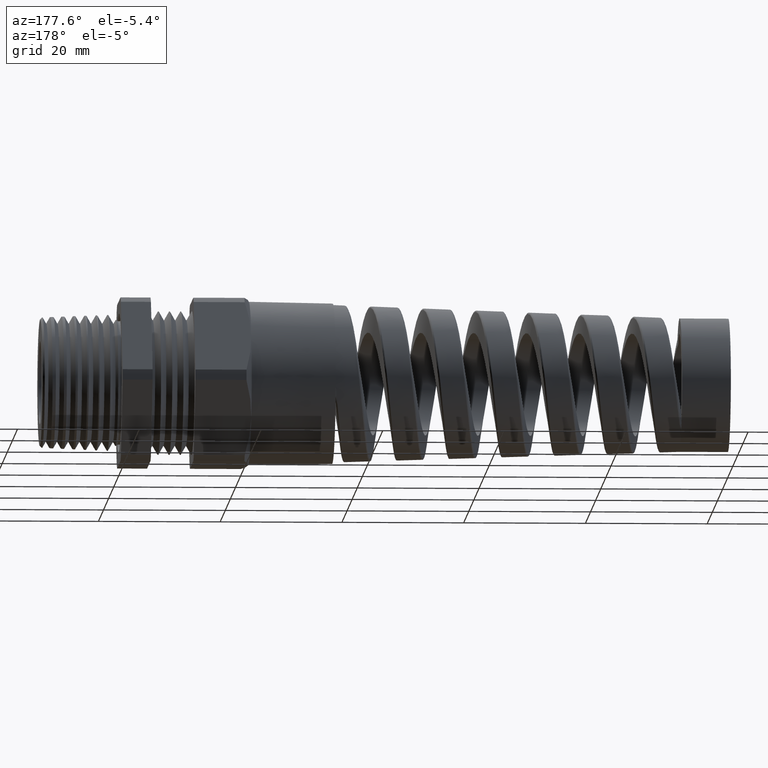
[diagram: clean part render]
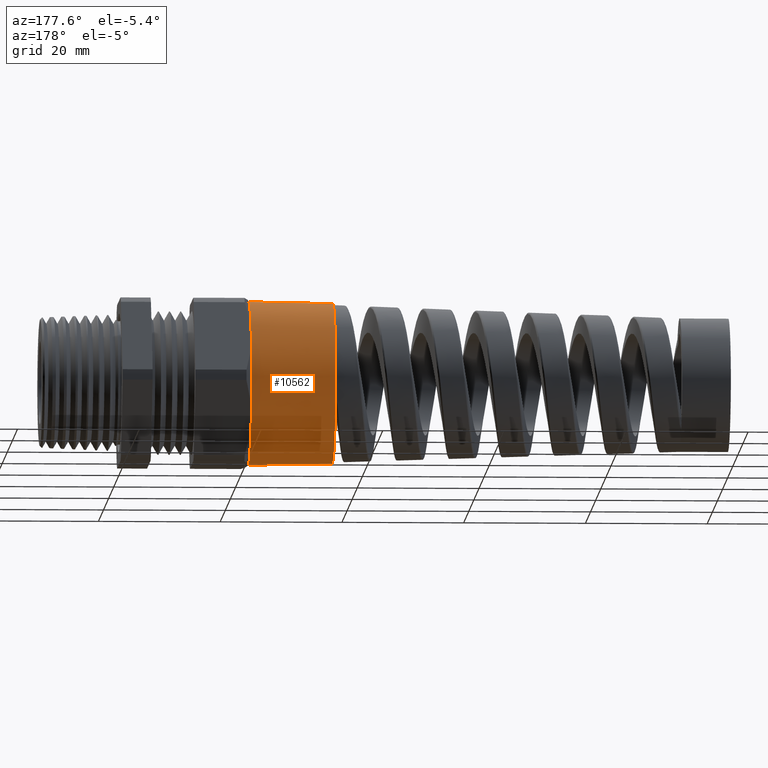
[diagram: same view with one face highlighted and labeled with its STEP entity id]
A machine part, auxiliary view. The second image highlights one B-rep face of the part: STEP entity #10562.
In plain terms, the highlighted conical surface has half-angle 1 deg.
Its self-contained STEP definition (entity closure, byte-faithful):
#3697 = LINE ( 'NONE', #3723, #3722 ) ;
#3699 = CARTESIAN_POINT ( 'NONE',  ( -0.8375000000000000200, 0.0000000000000000000, 0.5299999999999999200 ) ) ;
#3721 = DIRECTION ( 'NONE',  ( 0.9998476951563912700, 0.0000000000000000000, 0.01745240643728355000 ) ) ;
#3722 = VECTOR ( 'NONE', #3721, 39.37007874015748100 ) ;
#3723 = CARTESIAN_POINT ( 'NONE',  ( -0.8375000000000001300, 0.0000000000000000000, 0.5299999999999999200 ) ) ;
#3758 = CARTESIAN_POINT ( 'NONE',  ( -0.8375000000000000200, 0.0000000000000000000, -0.5299999999999999200 ) ) ;
#3759 = DIRECTION ( 'NONE',  ( 0.9998476951563912700, -2.137303368083796300E-018, -0.01745240643728355000 ) ) ;
#3760 = VECTOR ( 'NONE', #3759, 39.37007874015748100 ) ;
#3761 = CARTESIAN_POINT ( 'NONE',  ( -0.8375000000000001300, -6.490628035480971200E-017, -0.5299999999999999200 ) ) ;
#3762 = LINE ( 'NONE', #3761, #3760 ) ;
#3763 = CARTESIAN_POINT ( 'NONE',  ( -1.381220000000000100, 0.0000000000000000000, 0.5205093320972294900 ) ) ;
#3769 = CARTESIAN_POINT ( 'NONE',  ( -1.381220000000000100, -6.432514455136479600E-017, -0.5205093320972294900 ) ) ;
#5578 = CARTESIAN_POINT ( 'NONE',  ( -0.8375000000000000200, 0.4589934640057525300, -0.2649999999999998500 ) ) ;
#5585 = CARTESIAN_POINT ( 'NONE',  ( -0.8375000000000001300, 0.4589934640057524200, 0.2650000000000000700 ) ) ;
#5956 = CIRCLE ( 'NONE', #6016, 0.5299999999999999200 ) ;
#5985 = DIRECTION ( 'NONE',  ( 0.0000000000000000000, 0.0000000000000000000, 1.000000000000000000 ) ) ;
#5986 = DIRECTION ( 'NONE',  ( -1.000000000000000000, 0.0000000000000000000, 0.0000000000000000000 ) ) ;
#5987 = CARTESIAN_POINT ( 'NONE',  ( -0.8375000000000000200, 0.0000000000000000000, 0.0000000000000000000 ) ) ;
#5988 = AXIS2_PLACEMENT_3D ( 'NONE', #5987, #5986, #5985 ) ;
#5993 = CIRCLE ( 'NONE', #5988, 0.5299999999999999200 ) ;
#5996 = DIRECTION ( 'NONE',  ( 0.0000000000000000000, 0.0000000000000000000, 1.000000000000000000 ) ) ;
#5997 = DIRECTION ( 'NONE',  ( -1.000000000000000000, 0.0000000000000000000, 0.0000000000000000000 ) ) ;
#5998 = AXIS2_PLACEMENT_3D ( 'NONE', #6004, #5997, #5996 ) ;
#5999 = CIRCLE ( 'NONE', #5998, 0.5299999999999999200 ) ;
#6004 = CARTESIAN_POINT ( 'NONE',  ( -0.8375000000000000200, 0.0000000000000000000, 0.0000000000000000000 ) ) ;
#6013 = DIRECTION ( 'NONE',  ( 0.0000000000000000000, 0.0000000000000000000, 1.000000000000000000 ) ) ;
#6014 = DIRECTION ( 'NONE',  ( -1.000000000000000000, 0.0000000000000000000, 0.0000000000000000000 ) ) ;
#6015 = CARTESIAN_POINT ( 'NONE',  ( -0.8375000000000000200, 0.0000000000000000000, 0.0000000000000000000 ) ) ;
#6016 = AXIS2_PLACEMENT_3D ( 'NONE', #6015, #6014, #6013 ) ;
#6809 = CARTESIAN_POINT ( 'NONE',  ( -1.381220000000000100, 0.0000000000000000000, 0.0000000000000000000 ) ) ;
#6810 = AXIS2_PLACEMENT_3D ( 'NONE', #6809, #6873, #6872 ) ;
#6811 = DIRECTION ( 'NONE',  ( 0.0000000000000000000, 0.0000000000000000000, 1.000000000000000000 ) ) ;
#6812 = AXIS2_PLACEMENT_3D ( 'NONE', #6827, #6830, #6811 ) ;
#6827 = CARTESIAN_POINT ( 'NONE',  ( -0.8375000000000001300, 0.0000000000000000000, 0.0000000000000000000 ) ) ;
#6828 = CONICAL_SURFACE ( 'NONE', #6812, 0.5299999999999999200, 0.01745329251994333400 ) ;
#6829 = CIRCLE ( 'NONE', #6810, 0.5205093320972294900 ) ;
#6830 = DIRECTION ( 'NONE',  ( 1.000000000000000000, 0.0000000000000000000, 0.0000000000000000000 ) ) ;
#6832 = FACE_OUTER_BOUND ( 'NONE', #10563, .T. ) ;
#6872 = DIRECTION ( 'NONE',  ( 0.0000000000000000000, 0.0000000000000000000, 1.000000000000000000 ) ) ;
#6873 = DIRECTION ( 'NONE',  ( -1.000000000000000000, 0.0000000000000000000, 0.0000000000000000000 ) ) ;
#9344 = VERTEX_POINT ( 'NONE', #3699 ) ;
#9346 = EDGE_CURVE ( 'NONE', #9360, #9344, #3697, .T. ) ;
#9358 = VERTEX_POINT ( 'NONE', #3769 ) ;
#9360 = VERTEX_POINT ( 'NONE', #3763 ) ;
#9362 = EDGE_CURVE ( 'NONE', #9358, #9363, #3762, .T. ) ;
#9363 = VERTEX_POINT ( 'NONE', #3758 ) ;
#10125 = VERTEX_POINT ( 'NONE', #5578 ) ;
#10140 = VERTEX_POINT ( 'NONE', #5585 ) ;
#10361 = EDGE_CURVE ( 'NONE', #9344, #10140, #5956, .T. ) ;
#10374 = EDGE_CURVE ( 'NONE', #10125, #9363, #5999, .T. ) ;
#10379 = EDGE_CURVE ( 'NONE', #10140, #10125, #5993, .T. ) ;
#10562 = ADVANCED_FACE ( 'NONE', ( #6832 ), #6828, .T. ) ;
#10563 = EDGE_LOOP ( 'NONE', ( #10564, #10565, #10625, #10626, #10627, #10628 ) ) ;
#10564 = ORIENTED_EDGE ( 'NONE', *, *, #9362, .F. ) ;
#10565 = ORIENTED_EDGE ( 'NONE', *, *, #10569, .F. ) ;
#10569 = EDGE_CURVE ( 'NONE', #9360, #9358, #6829, .T. ) ;
#10625 = ORIENTED_EDGE ( 'NONE', *, *, #9346, .T. ) ;
#10626 = ORIENTED_EDGE ( 'NONE', *, *, #10361, .T. ) ;
#10627 = ORIENTED_EDGE ( 'NONE', *, *, #10379, .T. ) ;
#10628 = ORIENTED_EDGE ( 'NONE', *, *, #10374, .T. ) ;